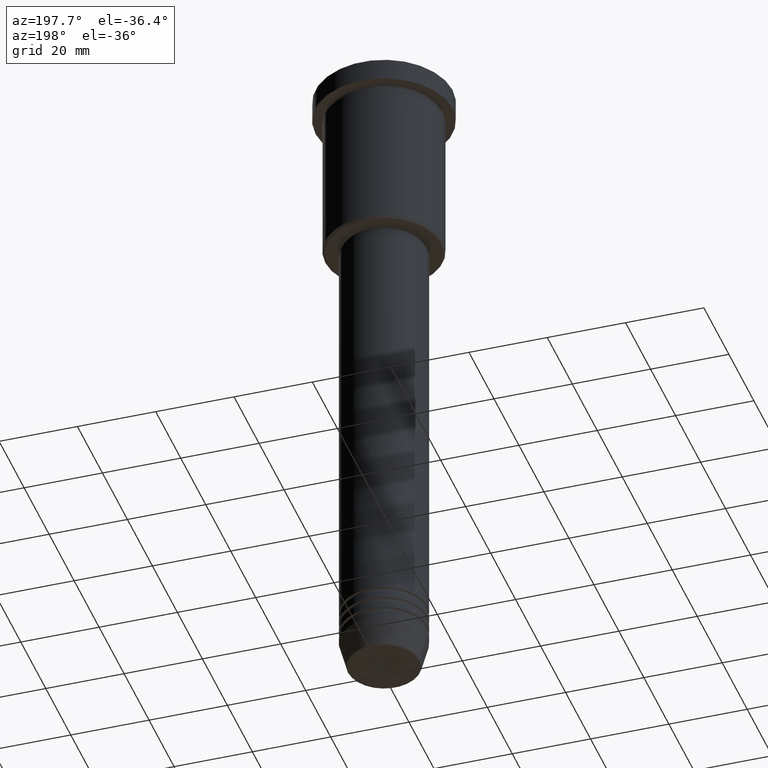
[diagram: clean part render]
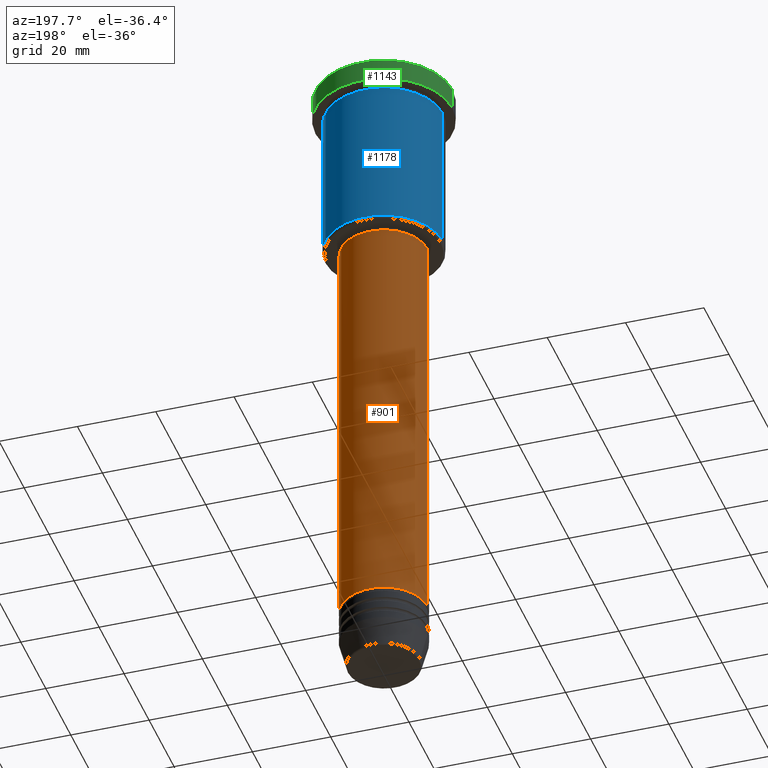
[diagram: same view with three faces highlighted in distinct colors, each labeled with its STEP entity id]
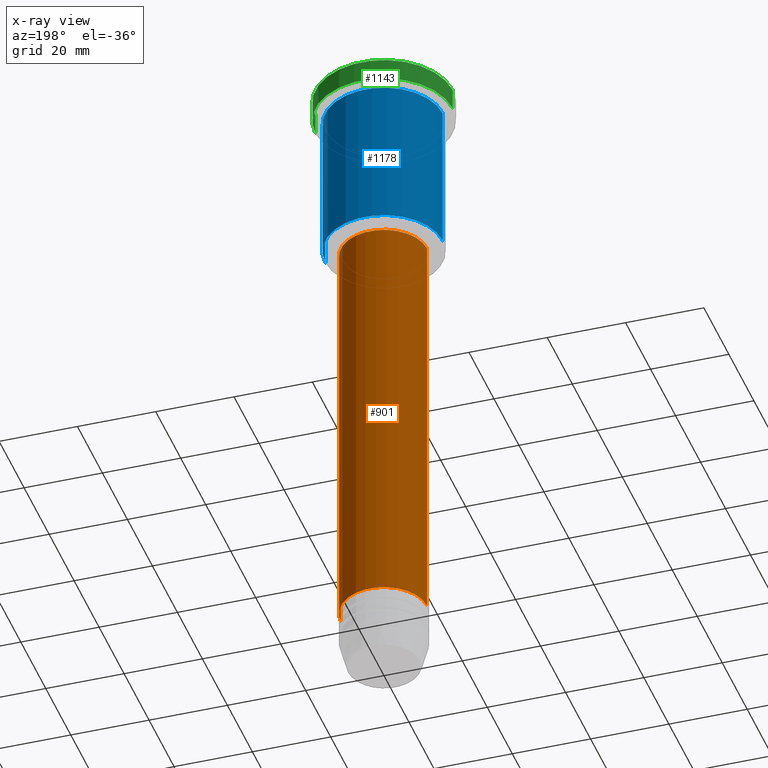
[diagram: x-ray of the same camera — body ghosted, the three highlighted faces saturated]
A machine part, auxiliary view with three faces highlighted in distinct colors.
The next image is the same camera in x-ray (body ghosted, the three faces saturated) — at least one of them is partly hidden behind the body in this view.
Their STEP definitions:

[orange] entity #901 — the highlighted cylindrical surface (partial cylindrical patch) has radius 11 mm, axis along (-0, -0, 1).
#2 = DIRECTION ( 'NONE',  ( 1.000000000000000000, 0.000000000000000000, 0.000000000000000000 ) ) ;
#3 = ORIENTED_EDGE ( 'NONE', *, *, #999, .T. ) ;
#16 = CARTESIAN_POINT ( 'NONE',  ( 11.00000000000000000, 0.000000000000000000, 0.000000000000000000 ) ) ;
#148 = CARTESIAN_POINT ( 'NONE',  ( 0.000000000000000000, 0.000000000000000000, -154.9999999999999716 ) ) ;
#185 = LINE ( 'NONE', #16, #390 ) ;
#215 = AXIS2_PLACEMENT_3D ( 'NONE', #148, #981, #709 ) ;
#216 = CARTESIAN_POINT ( 'NONE',  ( 0.000000000000000000, 0.000000000000000000, 0.000000000000000000 ) ) ;
#279 = VERTEX_POINT ( 'NONE', #656 ) ;
#357 = EDGE_CURVE ( 'NONE', #805, #673, #439, .T. ) ;
#390 = VECTOR ( 'NONE', #745, 1000.000000000000000 ) ;
#396 = EDGE_CURVE ( 'NONE', #279, #805, #185, .T. ) ;
#425 = CIRCLE ( 'NONE', #215, 11.00000000000000000 ) ;
#439 = CIRCLE ( 'NONE', #912, 11.00000000000000000 ) ;
#450 = CARTESIAN_POINT ( 'NONE',  ( 0.000000000000000000, 0.000000000000000000, -47.00000000000000711 ) ) ;
#486 = CARTESIAN_POINT ( 'NONE',  ( -11.00000000000000000, 1.347111479062088405E-15, -47.00000000000000711 ) ) ;
#494 = CARTESIAN_POINT ( 'NONE',  ( 11.00000000000000000, 0.000000000000000000, -47.00000000000000711 ) ) ;
#533 = ORIENTED_EDGE ( 'NONE', *, *, #535, .T. ) ;
#535 = EDGE_CURVE ( 'NONE', #917, #673, #1039, .T. ) ;
#656 = CARTESIAN_POINT ( 'NONE',  ( 11.00000000000000000, 0.000000000000000000, -154.9999999999999716 ) ) ;
#660 = VECTOR ( 'NONE', #1034, 1000.000000000000000 ) ;
#673 = VERTEX_POINT ( 'NONE', #486 ) ;
#691 = CYLINDRICAL_SURFACE ( 'NONE', #876, 11.00000000000000000 ) ;
#709 = DIRECTION ( 'NONE',  ( 1.000000000000000000, 0.000000000000000000, 0.000000000000000000 ) ) ;
#745 = DIRECTION ( 'NONE',  ( -0.000000000000000000, -0.000000000000000000, 1.000000000000000000 ) ) ;
#775 = CARTESIAN_POINT ( 'NONE',  ( -11.00000000000000000, 1.347111479062088405E-15, 0.000000000000000000 ) ) ;
#779 = ORIENTED_EDGE ( 'NONE', *, *, #396, .F. ) ;
#805 = VERTEX_POINT ( 'NONE', #494 ) ;
#820 = DIRECTION ( 'NONE',  ( -0.000000000000000000, -0.000000000000000000, 1.000000000000000000 ) ) ;
#828 = CARTESIAN_POINT ( 'NONE',  ( -11.00000000000000000, 1.347111479062088405E-15, -154.9999999999999716 ) ) ;
#862 = FACE_OUTER_BOUND ( 'NONE', #1073, .T. ) ;
#876 = AXIS2_PLACEMENT_3D ( 'NONE', #216, #879, #1048 ) ;
#879 = DIRECTION ( 'NONE',  ( -0.000000000000000000, -0.000000000000000000, 1.000000000000000000 ) ) ;
#901 = ADVANCED_FACE ( 'NONE', ( #862 ), #691, .T. ) ;
#912 = AXIS2_PLACEMENT_3D ( 'NONE', #450, #820, #2 ) ;
#917 = VERTEX_POINT ( 'NONE', #828 ) ;
#981 = DIRECTION ( 'NONE',  ( -0.000000000000000000, -0.000000000000000000, 1.000000000000000000 ) ) ;
#999 = EDGE_CURVE ( 'NONE', #279, #917, #425, .T. ) ;
#1034 = DIRECTION ( 'NONE',  ( -0.000000000000000000, -0.000000000000000000, 1.000000000000000000 ) ) ;
#1035 = ORIENTED_EDGE ( 'NONE', *, *, #357, .F. ) ;
#1039 = LINE ( 'NONE', #775, #660 ) ;
#1048 = DIRECTION ( 'NONE',  ( 1.000000000000000000, 0.000000000000000000, 0.000000000000000000 ) ) ;
#1073 = EDGE_LOOP ( 'NONE', ( #3, #533, #1035, #779 ) ) ;

[blue] entity #1178 — the highlighted cylindrical surface (partial cylindrical patch) has radius 15 mm, axis along (-0, -0, 1).
#11 = ORIENTED_EDGE ( 'NONE', *, *, #710, .T. ) ;
#44 = VERTEX_POINT ( 'NONE', #337 ) ;
#46 = CIRCLE ( 'NONE', #1028, 15.00000000000000000 ) ;
#48 = CARTESIAN_POINT ( 'NONE',  ( 0.000000000000000000, 0.000000000000000000, -6.999999999999995559 ) ) ;
#60 = VECTOR ( 'NONE', #363, 1000.000000000000000 ) ;
#64 = ORIENTED_EDGE ( 'NONE', *, *, #891, .F. ) ;
#88 = DIRECTION ( 'NONE',  ( 1.000000000000000000, 0.000000000000000000, 0.000000000000000000 ) ) ;
#104 = CARTESIAN_POINT ( 'NONE',  ( 15.00000000000000000, 0.000000000000000000, 0.000000000000000000 ) ) ;
#140 = DIRECTION ( 'NONE',  ( -0.000000000000000000, -0.000000000000000000, 1.000000000000000000 ) ) ;
#154 = CARTESIAN_POINT ( 'NONE',  ( -15.00000000000000000, 1.836970198721029589E-15, 0.000000000000000000 ) ) ;
#174 = AXIS2_PLACEMENT_3D ( 'NONE', #804, #618, #88 ) ;
#180 = FACE_OUTER_BOUND ( 'NONE', #650, .T. ) ;
#182 = VERTEX_POINT ( 'NONE', #583 ) ;
#259 = LINE ( 'NONE', #104, #874 ) ;
#266 = CYLINDRICAL_SURFACE ( 'NONE', #174, 15.00000000000000000 ) ;
#337 = CARTESIAN_POINT ( 'NONE',  ( 15.00000000000000000, 0.000000000000000000, -6.999999999999995559 ) ) ;
#340 = EDGE_CURVE ( 'NONE', #1011, #44, #259, .T. ) ;
#363 = DIRECTION ( 'NONE',  ( -0.000000000000000000, -0.000000000000000000, 1.000000000000000000 ) ) ;
#392 = AXIS2_PLACEMENT_3D ( 'NONE', #428, #140, #511 ) ;
#397 = DIRECTION ( 'NONE',  ( 1.000000000000000000, 0.000000000000000000, 0.000000000000000000 ) ) ;
#428 = CARTESIAN_POINT ( 'NONE',  ( 0.000000000000000000, 0.000000000000000000, -45.49999999999997158 ) ) ;
#444 = CARTESIAN_POINT ( 'NONE',  ( -15.00000000000000000, 1.836970198721029589E-15, -45.49999999999997158 ) ) ;
#511 = DIRECTION ( 'NONE',  ( -1.000000000000000000, 0.000000000000000000, 0.000000000000000000 ) ) ;
#562 = ORIENTED_EDGE ( 'NONE', *, *, #982, .T. ) ;
#578 = DIRECTION ( 'NONE',  ( -0.000000000000000000, -0.000000000000000000, 1.000000000000000000 ) ) ;
#583 = CARTESIAN_POINT ( 'NONE',  ( -15.00000000000000000, 1.836970198721029589E-15, -6.999999999999995559 ) ) ;
#618 = DIRECTION ( 'NONE',  ( -0.000000000000000000, -0.000000000000000000, 1.000000000000000000 ) ) ;
#650 = EDGE_LOOP ( 'NONE', ( #562, #11, #64, #833 ) ) ;
#707 = LINE ( 'NONE', #154, #60 ) ;
#710 = EDGE_CURVE ( 'NONE', #930, #182, #707, .T. ) ;
#804 = CARTESIAN_POINT ( 'NONE',  ( 0.000000000000000000, 0.000000000000000000, 0.000000000000000000 ) ) ;
#833 = ORIENTED_EDGE ( 'NONE', *, *, #340, .F. ) ;
#874 = VECTOR ( 'NONE', #935, 1000.000000000000000 ) ;
#891 = EDGE_CURVE ( 'NONE', #44, #182, #46, .T. ) ;
#930 = VERTEX_POINT ( 'NONE', #444 ) ;
#935 = DIRECTION ( 'NONE',  ( -0.000000000000000000, -0.000000000000000000, 1.000000000000000000 ) ) ;
#961 = CIRCLE ( 'NONE', #392, 15.00000000000000000 ) ;
#971 = CARTESIAN_POINT ( 'NONE',  ( 15.00000000000000000, 0.000000000000000000, -45.49999999999997158 ) ) ;
#982 = EDGE_CURVE ( 'NONE', #1011, #930, #961, .T. ) ;
#1011 = VERTEX_POINT ( 'NONE', #971 ) ;
#1028 = AXIS2_PLACEMENT_3D ( 'NONE', #48, #578, #397 ) ;
#1178 = ADVANCED_FACE ( 'NONE', ( #180 ), #266, .T. ) ;

[green] entity #1143 — the highlighted cylindrical surface (partial cylindrical patch) has radius 17.5 mm, axis along (-0, -0, 1).
#12 = AXIS2_PLACEMENT_3D ( 'NONE', #1092, #83, #1012 ) ;
#24 = CIRCLE ( 'NONE', #991, 17.50000000000000000 ) ;
#82 = CARTESIAN_POINT ( 'NONE',  ( -17.50000000000000000, 2.143131898507868248E-15, -0.4999999999999727995 ) ) ;
#83 = DIRECTION ( 'NONE',  ( -0.000000000000000000, -0.000000000000000000, 1.000000000000000000 ) ) ;
#86 = VERTEX_POINT ( 'NONE', #806 ) ;
#89 = DIRECTION ( 'NONE',  ( 0.000000000000000000, 0.000000000000000000, -1.000000000000000000 ) ) ;
#91 = CARTESIAN_POINT ( 'NONE',  ( -17.50000000000000000, 2.143131898507868248E-15, -5.999999999999995559 ) ) ;
#120 = VERTEX_POINT ( 'NONE', #91 ) ;
#168 = CARTESIAN_POINT ( 'NONE',  ( 0.000000000000000000, 0.000000000000000000, -0.4999999999999727995 ) ) ;
#200 = CARTESIAN_POINT ( 'NONE',  ( 17.50000000000000000, 0.000000000000000000, 0.000000000000000000 ) ) ;
#205 = DIRECTION ( 'NONE',  ( -0.000000000000000000, -0.000000000000000000, 1.000000000000000000 ) ) ;
#211 = CARTESIAN_POINT ( 'NONE',  ( -17.50000000000000000, 2.143131898507868248E-15, 0.000000000000000000 ) ) ;
#220 = ORIENTED_EDGE ( 'NONE', *, *, #413, .T. ) ;
#362 = VERTEX_POINT ( 'NONE', #928 ) ;
#364 = EDGE_CURVE ( 'NONE', #849, #362, #1027, .T. ) ;
#413 = EDGE_CURVE ( 'NONE', #86, #120, #24, .T. ) ;
#456 = DIRECTION ( 'NONE',  ( 1.000000000000000000, 0.000000000000000000, 0.000000000000000000 ) ) ;
#460 = VECTOR ( 'NONE', #205, 1000.000000000000000 ) ;
#501 = DIRECTION ( 'NONE',  ( -0.000000000000000000, -0.000000000000000000, 1.000000000000000000 ) ) ;
#529 = VECTOR ( 'NONE', #1132, 1000.000000000000000 ) ;
#552 = EDGE_CURVE ( 'NONE', #86, #362, #893, .T. ) ;
#580 = LINE ( 'NONE', #211, #529 ) ;
#674 = ORIENTED_EDGE ( 'NONE', *, *, #364, .T. ) ;
#720 = EDGE_LOOP ( 'NONE', ( #220, #742, #674, #1029 ) ) ;
#726 = CYLINDRICAL_SURFACE ( 'NONE', #12, 17.50000000000000000 ) ;
#742 = ORIENTED_EDGE ( 'NONE', *, *, #788, .T. ) ;
#788 = EDGE_CURVE ( 'NONE', #120, #849, #580, .T. ) ;
#806 = CARTESIAN_POINT ( 'NONE',  ( 17.50000000000000000, 0.000000000000000000, -5.999999999999995559 ) ) ;
#849 = VERTEX_POINT ( 'NONE', #82 ) ;
#893 = LINE ( 'NONE', #200, #460 ) ;
#922 = FACE_OUTER_BOUND ( 'NONE', #720, .T. ) ;
#928 = CARTESIAN_POINT ( 'NONE',  ( 17.50000000000000000, 0.000000000000000000, -0.4999999999999727995 ) ) ;
#946 = CARTESIAN_POINT ( 'NONE',  ( 0.000000000000000000, 0.000000000000000000, -5.999999999999995559 ) ) ;
#991 = AXIS2_PLACEMENT_3D ( 'NONE', #946, #501, #1130 ) ;
#1012 = DIRECTION ( 'NONE',  ( 1.000000000000000000, 0.000000000000000000, 0.000000000000000000 ) ) ;
#1027 = CIRCLE ( 'NONE', #1172, 17.50000000000000000 ) ;
#1029 = ORIENTED_EDGE ( 'NONE', *, *, #552, .F. ) ;
#1092 = CARTESIAN_POINT ( 'NONE',  ( 0.000000000000000000, 0.000000000000000000, 0.000000000000000000 ) ) ;
#1130 = DIRECTION ( 'NONE',  ( 1.000000000000000000, 0.000000000000000000, 0.000000000000000000 ) ) ;
#1132 = DIRECTION ( 'NONE',  ( -0.000000000000000000, -0.000000000000000000, 1.000000000000000000 ) ) ;
#1143 = ADVANCED_FACE ( 'NONE', ( #922 ), #726, .T. ) ;
#1172 = AXIS2_PLACEMENT_3D ( 'NONE', #168, #89, #456 ) ;